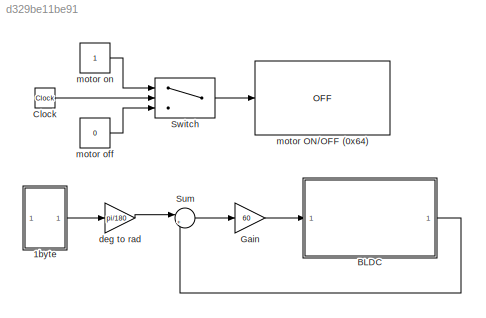
MODEL slx_d329be11be91
KIND model
CONFIG AbsTol = auto
CONFIG EnableMultiTasking = on
CONFIG FixedStep = 0.005
CONFIG MaxStep = auto
CONFIG MinStep = auto
CONFIG RelTol = 1e-3
CONFIG SampleTimeConstraint = Unconstrained
CONFIG SolverName = FixedStepDiscrete
CONFIG StartTime = 0.0
CONFIG StopTime = inf
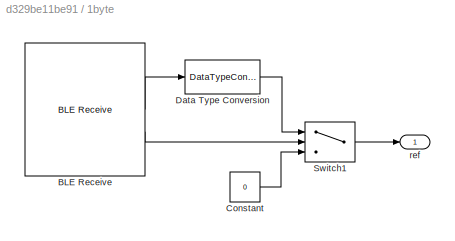
BLOCK [SubSystem] 1byte
BLOCK [Reference] 1byte/BLE Receive  REF=arduinolib/BLE Receive
  SourceBlock = arduinolib/BLE Receive
  SourceProductName = Common
  SourceType = codertarget.arduinobase.internal.arduinoBLEReceive
BLOCK [Constant] 1byte/Constant
  Value = 0
BLOCK [DataTypeConversion] 1byte/Data Type Conversion
  OutDataTypeStr = double
  RndMeth = Floor
  SaturateOnIntegerOverflow = off
BLOCK [Switch] 1byte/Switch1
  Criteria = u2 > Threshold
  InputSameDT = off
  SaturateOnIntegerOverflow = off
BLOCK [Outport] 1byte/ref
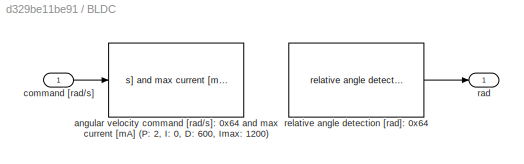
BLOCK [SubSystem] BLDC
BLOCK [Reference] BLDC/angular velocity command [rad//s]: 0x64 and max current [mA] (P: 2, I: 0, D: 600, Imax: 1200)  REF=roller485lib/I2C Write/angular velocity command [rad//s]  (lib defined in slx_9f537789314b)
and max current [mA]
  SourceBlock = roller485lib/I2C Write/angular velocity command [rad//s]\nand max current [mA]
  SourceProductName = Roller485 Library
  SourceType = angular velocity command [rad/s]
BLOCK [Inport] BLDC/command [rad//s]
BLOCK [Outport] BLDC/rad
BLOCK [Reference] BLDC/relative angle detection [rad]: 0x64  REF=roller485lib/I2C Read/relative angle detection [rad]  (lib defined in slx_9f537789314b)
  SourceBlock = roller485lib/I2C Read/relative angle detection [rad]
  SourceProductName = Roller485 Library
BLOCK [Clock] Clock
BLOCK [Gain] Gain
  Gain = 60
BLOCK [Sum] Sum
  Inputs = |+-
BLOCK [Switch] Switch
  InputSameDT = off
  SaturateOnIntegerOverflow = off
  Threshold = 5
BLOCK [Gain] deg to rad
  Gain = pi/180
BLOCK [Reference] motor ON//OFF (0x64)  REF=roller485lib/motor ON//OFF  (lib defined in slx_9f537789314b)
  SourceBlock = roller485lib/motor ON//OFF
  SourceProductName = Roller485 Library
BLOCK [Constant] motor off
  Value = 0
BLOCK [Constant] motor on
LINE 1byte/BLE Receive:1 -> 1byte/Data Type Conversion:1
LINE 1byte/BLE Receive:2 -> 1byte/Switch1:2
LINE 1byte/Constant:1 -> 1byte/Switch1:3
LINE 1byte/Data Type Conversion:1 -> 1byte/Switch1:1
LINE 1byte/Switch1:1 -> 1byte/ref:1
LINE 1byte:1 -> deg to rad:1
LINE BLDC/command [rad//s]:1 -> BLDC/angular velocity command [rad//s]: 0x64 and max current [mA] (P: 2, I: 0, D: 600, Imax: 1200):1
LINE BLDC/relative angle detection [rad]: 0x64:1 -> BLDC/rad:1
LINE BLDC:1 -> Sum:2
LINE Clock:1 -> Switch:2
LINE Gain:1 -> BLDC:1
LINE Sum:1 -> Gain:1
LINE Switch:1 -> motor ON//OFF (0x64):1
LINE deg to rad:1 -> Sum:1
LINE motor off:1 -> Switch:3
LINE motor on:1 -> Switch:1
